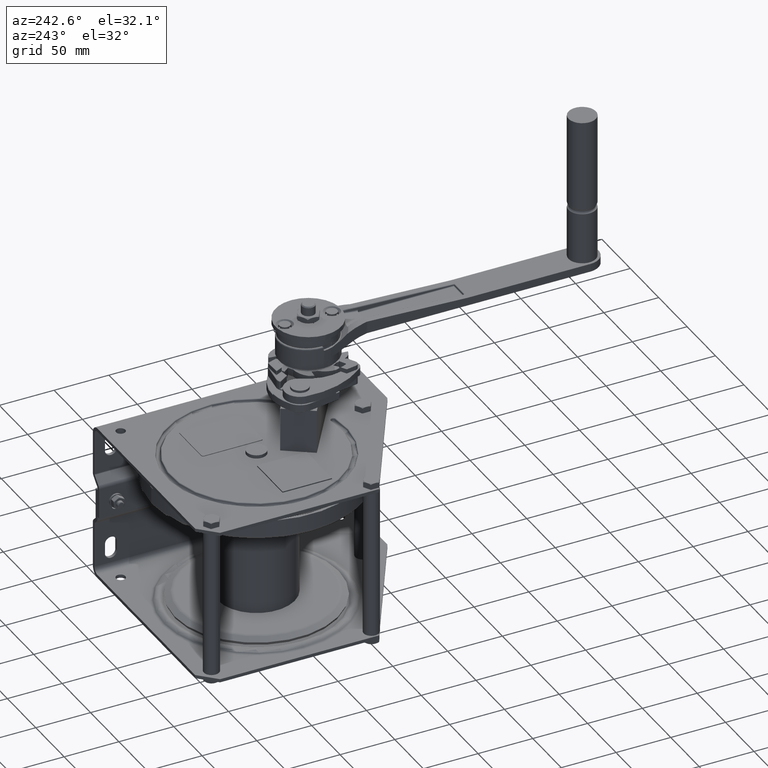
[diagram: clean part render]
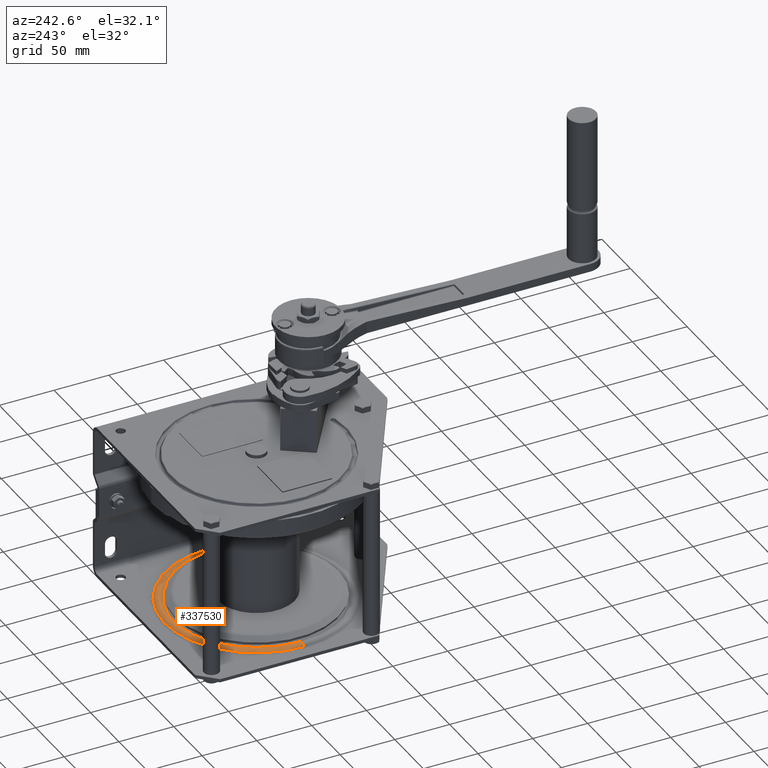
[diagram: same view with one face highlighted and labeled with its STEP entity id]
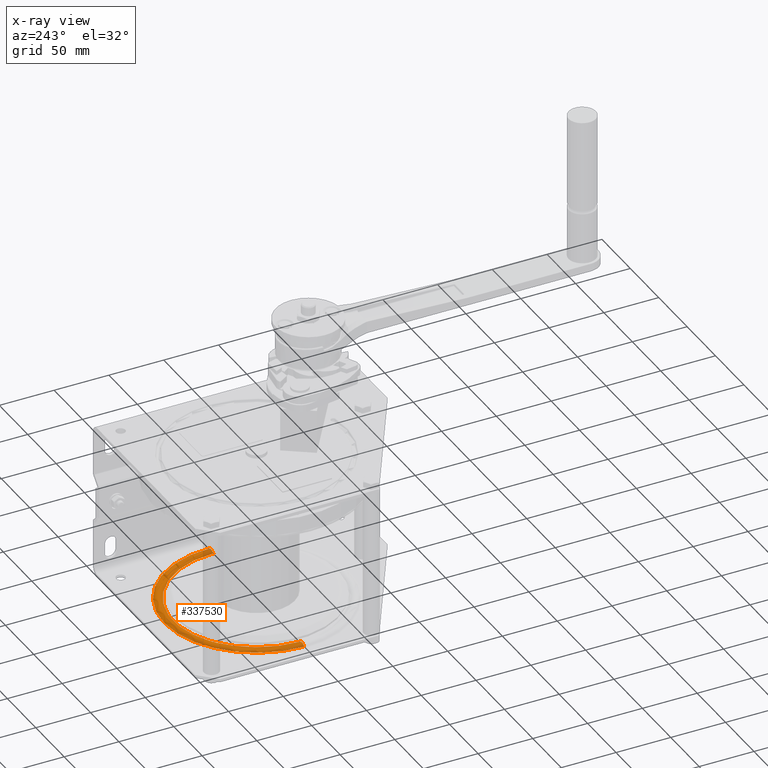
[diagram: x-ray of the same camera — body ghosted, the highlighted face saturated]
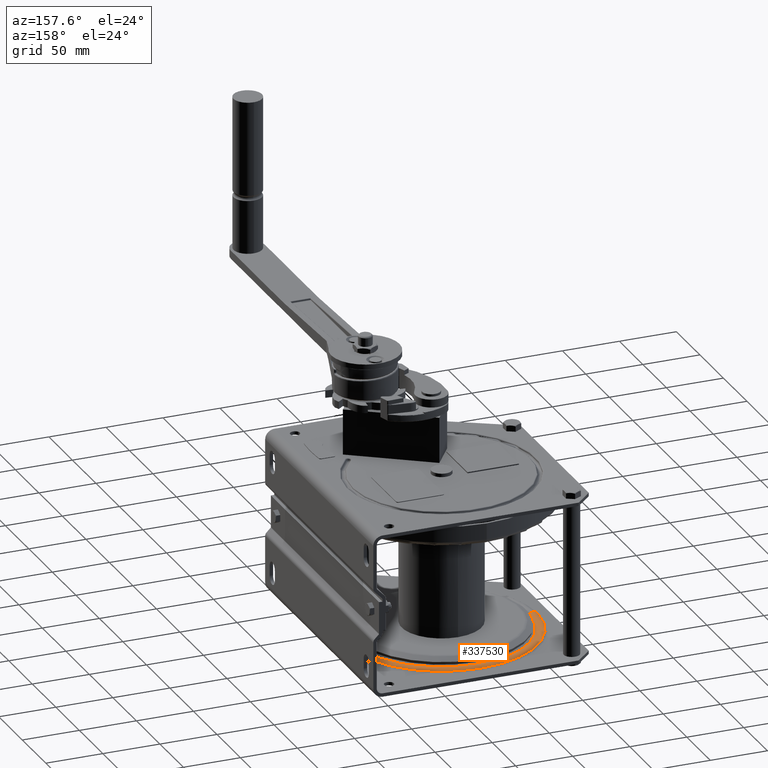
[diagram: same view with one face highlighted and labeled with its STEP entity id]
A machine part, auxiliary view. The second image highlights one B-rep face of the part: STEP entity #337530.
The next image is the same camera in x-ray: the body ghosted, the highlighted face saturated — about 3% of this face is hidden behind the body in this view.
A second angle (auxiliary view) of the same face is appended — the face is thin or edge-on in the first view.
In plain terms, the highlighted toroidal blend (fillet) surface has major radius 80 mm and minor (blend) radius 5 mm.
Its self-contained STEP definition (entity closure, byte-faithful):
#336960=CARTESIAN_POINT('',(-31.5933450918841,-260.918201438849,
83.903123748999));
#336970=VERTEX_POINT('',#336960);
#337060=CARTESIAN_POINT('',(-31.5933450918841,-260.918201438849,
-83.903123748999));
#337070=VERTEX_POINT('',#337060);
#337100=CARTESIAN_POINT('',(-31.5933450918841,-260.918201438849,0.));
#337110=DIRECTION('',(-1.,0.,0.));
#337120=DIRECTION('',(0.,0.,1.));
#337130=AXIS2_PLACEMENT_3D('',#337100,#337110,#337120);
#337140=CIRCLE('',#337130,83.903123748999);
#337150=EDGE_CURVE('',#337070,#336970,#337140,.T.);
#337200=CARTESIAN_POINT('',(-28.4683450918841,-260.918201438849,0.));
#337210=DIRECTION('',(-1.,0.,0.));
#337220=DIRECTION('',(0.,0.,1.));
#337230=AXIS2_PLACEMENT_3D('',#337200,#337210,#337220);
#337240=TOROIDAL_SURFACE('',#337230,80.,5.);
#337250=CARTESIAN_POINT('',(-28.4683450918841,-260.918201438849,-80.));
#337260=DIRECTION('',(0.,-1.,0.));
#337270=DIRECTION('',(-1.,0.,0.));
#337280=AXIS2_PLACEMENT_3D('',#337250,#337260,#337270);
#337290=CIRCLE('',#337280,5.);
#337300=CARTESIAN_POINT('',(-31.5933450918841,-260.918201438849,
-76.096876251001));
#337310=VERTEX_POINT('',#337300);
#337320=EDGE_CURVE('',#337310,#337070,#337290,.T.);
#337330=ORIENTED_EDGE('',*,*,#337320,.T.);
#337340=CARTESIAN_POINT('',(-31.5933450918841,-260.918201438849,0.));
#337350=DIRECTION('',(-1.,0.,0.));
#337360=DIRECTION('',(0.,0.,1.));
#337370=AXIS2_PLACEMENT_3D('',#337340,#337350,#337360);
#337380=CIRCLE('',#337370,76.096876251001);
#337390=CARTESIAN_POINT('',(-31.5933450918841,-260.918201438849,
76.096876251001));
#337400=VERTEX_POINT('',#337390);
#337410=EDGE_CURVE('',#337310,#337400,#337380,.T.);
#337420=ORIENTED_EDGE('',*,*,#337410,.F.);
#337430=CARTESIAN_POINT('',(-28.4683450918841,-260.918201438849,80.));
#337440=DIRECTION('',(0.,1.,0.));
#337450=DIRECTION('',(-1.,0.,0.));
#337460=AXIS2_PLACEMENT_3D('',#337430,#337440,#337450);
#337470=CIRCLE('',#337460,5.);
#337480=EDGE_CURVE('',#337400,#336970,#337470,.T.);
#337490=ORIENTED_EDGE('',*,*,#337480,.F.);
#337500=ORIENTED_EDGE('',*,*,#337150,.T.);
#337510=EDGE_LOOP('',(#337500,#337490,#337420,#337330));
#337520=FACE_OUTER_BOUND('',#337510,.T.);
#337530=ADVANCED_FACE('',(#337520),#337240,.T.);